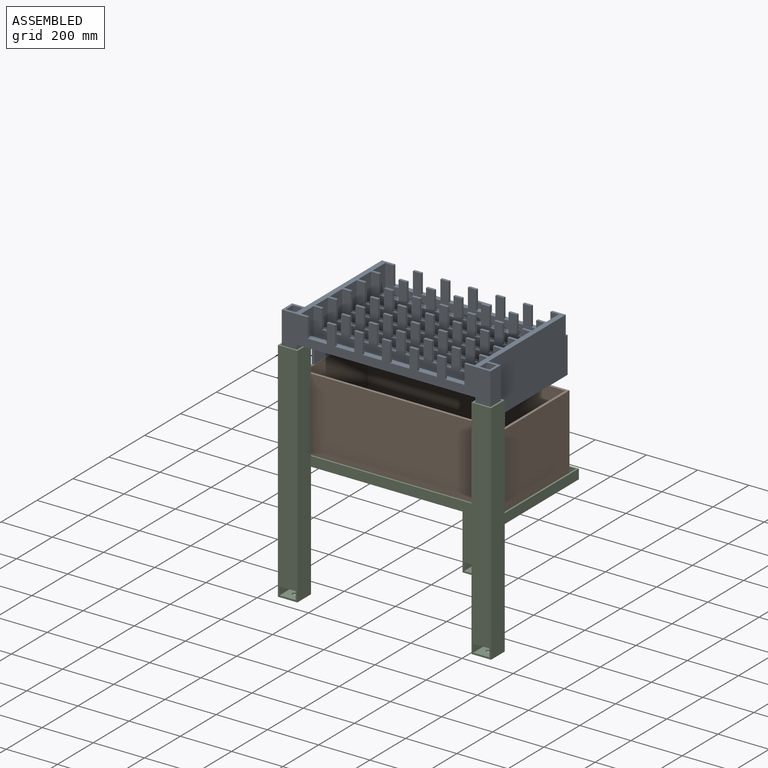
[diagram: assembled view]
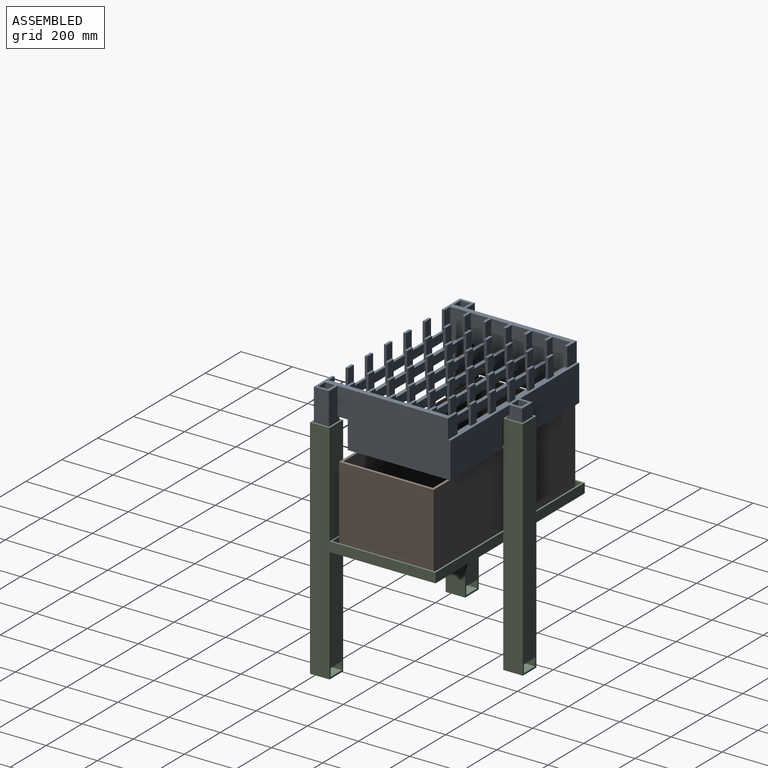
[diagram: assembled view, second angle]
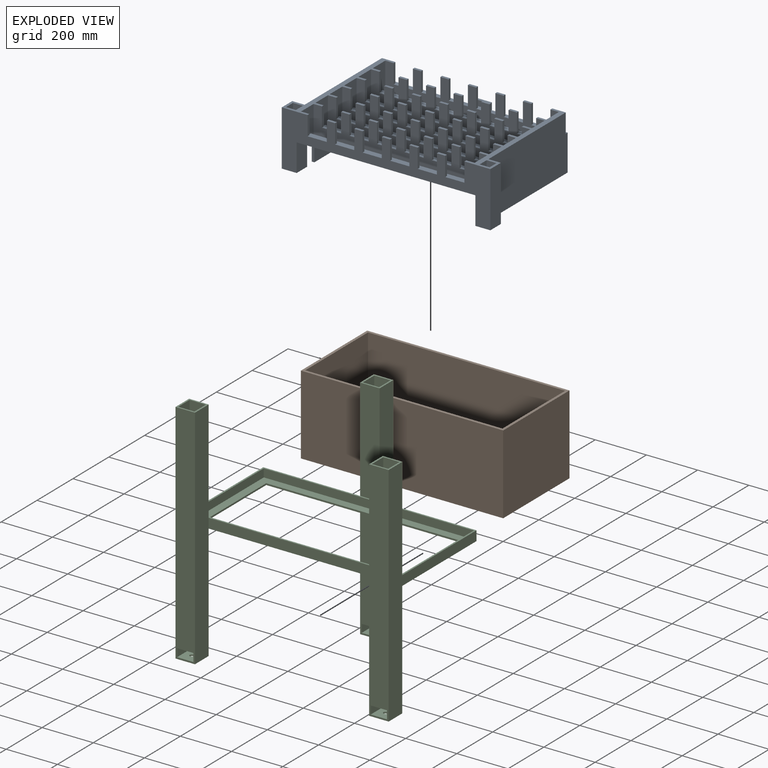
[diagram: exploded view]
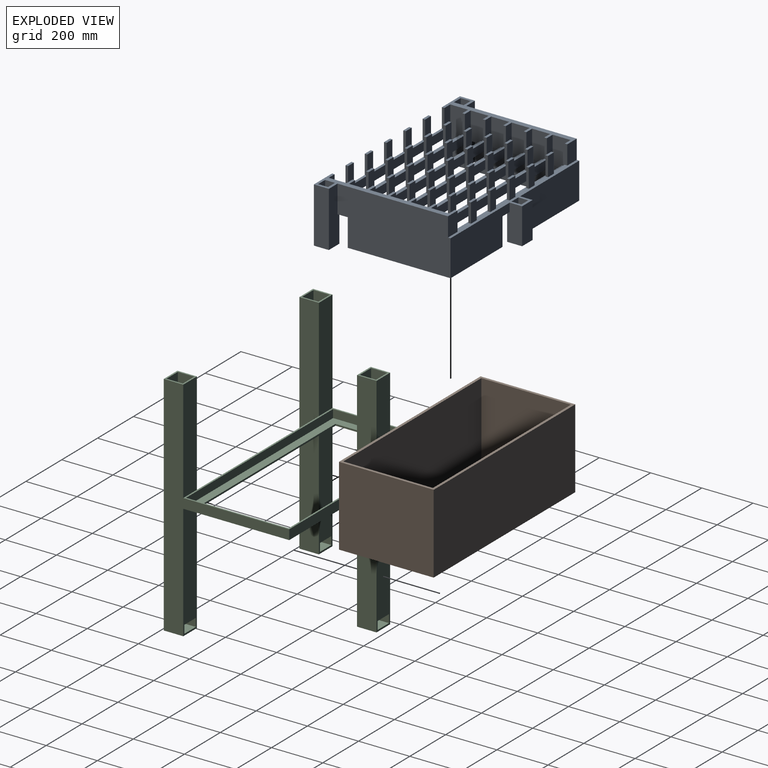
[diagram: exploded view, second angle]
ASSEMBLY  parts=3 mates=2
PART A: 248 faces, bbox 815x548.5x216 mm
  f0: plane 141x38.5mm, normal (-1,0,0), area 5428.5mm2, adj f2,f215,f241,f247
  f1: plane 329.75x141mm, normal (0,1,0), area 42174.7mm2, adj f11,f63,f215,f231,f242,f243
  f2: plane 141x38.5mm, normal (0,1,0), area 5428.5mm2, adj f0,f215,f241,f246
  f3: plane 329.75x141mm, normal (0,1,0), area 42174.7mm2, adj f63,f215,f222,f224,f239,f240
  f4: plane 75x53mm, normal (0,1,0), area 3975mm2, adj f50,f206,f215,f224
  f5: plane 75x32.5mm, normal (0,1,0), area 2437.5mm2, adj f43,f205,f208,f215
  f6: plane 75x32.5mm, normal (0,1,0), area 2437.5mm2, adj f36,f207,f210,f215
  f7: plane 75x32.5mm, normal (0,1,0), area 2437.5mm2, adj f29,f209,f212,f215
  f8: plane 75x32.5mm, normal (0,1,0), area 2437.5mm2, adj f22,f211,f214,f215
  f9: plane 75x32.5mm, normal (0,1,0), area 2437.5mm2, adj f15,f213,f215,f217
  f10: plane 216x38.5mm, normal (0,-1,0), area 8316mm2, adj f12,f96,f230,f236
  f11: plane 441.5x216mm, normal (-1,0,0), area 90294mm2, adj f1,f63,f65,f96,f215,f229,f231,f232
  f12: plane 216x38.5mm, normal (-1,0,0), area 8316mm2, adj f10,f96,f230,f234
  f13: plane 216x38.5mm, normal (0,1,0), area 8316mm2, adj f14,f50,f223,f227
  f14: plane 216x38.5mm, normal (1,0,0), area 8316mm2, adj f13,f50,f223,f226
  f15: plane 32.5x10mm, normal (0,0,1), area 325mm2, adj f9,f67,f213,f217
  f16: plane 32.5x10mm, normal (0,0,1), area 325mm2, adj f68,f71,f201,f202
  f17: plane 32.5x10mm, normal (0,0,1), area 325mm2, adj f72,f75,f183,f184
  f18: plane 32.5x10mm, normal (0,0,1), area 325mm2, adj f76,f79,f165,f166
  f19: plane 32.5x10mm, normal (0,0,1), area 325mm2, adj f80,f83,f147,f148
  f20: plane 32.5x10mm, normal (0,0,1), area 325mm2, adj f84,f87,f129,f130
  f21: plane 32.5x10mm, normal (0,0,1), area 325mm2, adj f64,f88,f111,f112
  f22: plane 32.5x10mm, normal (0,0,1), area 325mm2, adj f8,f67,f211,f214
  f23: plane 32.5x10mm, normal (0,0,1), area 325mm2, adj f68,f71,f198,f199
  f24: plane 32.5x10mm, normal (0,0,1), area 325mm2, adj f72,f75,f180,f181
  f25: plane 32.5x10mm, normal (0,0,1), area 325mm2, adj f76,f79,f162,f163
  f26: plane 32.5x10mm, normal (0,0,1), area 325mm2, adj f80,f83,f144,f145
  f27: plane 32.5x10mm, normal (0,0,1), area 325mm2, adj f84,f87,f126,f127
  f28: plane 32.5x10mm, normal (0,0,1), area 325mm2, adj f64,f88,f108,f109
  f29: plane 32.5x10mm, normal (0,0,1), area 325mm2, adj f7,f67,f209,f212
  f30: plane 32.5x10mm, normal (0,0,1), area 325mm2, adj f68,f71,f195,f196
  f31: plane 32.5x10mm, normal (0,0,1), area 325mm2, adj f72,f75,f177,f178
  f32: plane 32.5x10mm, normal (0,0,1), area 325mm2, adj f76,f79,f159,f160
  f33: plane 32.5x10mm, normal (0,0,1), area 325mm2, adj f80,f83,f141,f142
  f34: plane 32.5x10mm, normal (0,0,1), area 325mm2, adj f84,f87,f123,f124
  f35: plane 32.5x10mm, normal (0,0,1), area 325mm2, adj f64,f88,f105,f106
  f36: plane 32.5x10mm, normal (0,0,1), area 325mm2, adj f6,f67,f207,f210
  f37: plane 32.5x10mm, normal (0,0,1), area 325mm2, adj f68,f71,f192,f193
  f38: plane 32.5x10mm, normal (0,0,1), area 325mm2, adj f72,f75,f174,f175
  f39: plane 32.5x10mm, normal (0,0,1), area 325mm2, adj f76,f79,f156,f157
  f40: plane 32.5x10mm, normal (0,0,1), area 325mm2, adj f80,f83,f138,f139
  f41: plane 32.5x10mm, normal (0,0,1), area 325mm2, adj f84,f87,f120,f121
  f42: plane 32.5x10mm, normal (0,0,1), area 325mm2, adj f64,f88,f102,f103
  f43: plane 32.5x10mm, normal (0,0,1), area 325mm2, adj f5,f67,f205,f208
  f44: plane 32.5x10mm, normal (0,0,1), area 325mm2, adj f68,f71,f189,f190
  f45: plane 32.5x10mm, normal (0,0,1), area 325mm2, adj f72,f75,f171,f172
  f46: plane 32.5x10mm, normal (0,0,1), area 325mm2, adj f76,f79,f153,f154
  f47: plane 32.5x10mm, normal (0,0,1), area 325mm2, adj f80,f83,f135,f136
  f48: plane 32.5x10mm, normal (0,0,1), area 325mm2, adj f84,f87,f117,f118
  f49: plane 32.5x10mm, normal (0,0,1), area 325mm2, adj f64,f88,f99,f100
  f50: plane 490x101.5mm, normal (0,0,1), area 13465mm2, adj f4,f13,f14,f51,f53,f55,f57,f59
  f51: plane 108x70mm, normal (-1,0,0), area 7390mm2, adj f50,f63,f66,f67,f68,f69,f95
  f52: plane 108x70mm, normal (1,0,0), area 7390mm2, adj f63,f66,f67,f68,f69,f95,f96
  f53: plane 108x70mm, normal (-1,0,0), area 7390mm2, adj f50,f63,f70,f71,f72,f73,f94
  f54: plane 108x70mm, normal (1,0,0), area 7390mm2, adj f63,f70,f71,f72,f73,f94,f96
  f55: plane 108x70mm, normal (-1,0,0), area 7390mm2, adj f50,f63,f74,f75,f76,f77,f93
  f56: plane 108x70mm, normal (1,0,0), area 7390mm2, adj f63,f74,f75,f76,f77,f93,f96
  f57: plane 108x70mm, normal (-1,0,0), area 7390mm2, adj f50,f63,f78,f79,f80,f81,f92
  f58: plane 108x70mm, normal (1,0,0), area 7390mm2, adj f63,f78,f79,f80,f81,f92,f96
  f59: plane 108x70mm, normal (-1,0,0), area 7390mm2, adj f50,f63,f82,f83,f84,f85,f91
  f60: plane 108x70mm, normal (1,0,0), area 7390mm2, adj f63,f82,f83,f84,f85,f91,f96
  f61: plane 108x70mm, normal (-1,0,0), area 7390mm2, adj f50,f63,f86,f87,f88,f89,f90
  f62: plane 108x70mm, normal (1,0,0), area 7390mm2, adj f63,f86,f87,f88,f89,f90,f96
  f63: plane 718x500mm, normal (0,0,-1), area 128016mm2, adj f1,f3,f11,f51,f52,f53,f54,f55
  f64: plane 815x216mm, normal (0,-1,0), area 66906mm2, adj f21,f28,f35,f42,f49,f50,f63,f96
  f65: plane 75x52.5mm, normal (0,1,0), area 3937.5mm2, adj f11,f96,f215,f216
  f66: plane 678x10mm, normal (0,1,0), area 6780mm2, adj f51,f52,f63,f95
  f67: plane 678x108mm, normal (0,-1,0), area 39474mm2, adj f15,f22,f29,f36,f43,f50,f51,f52
  f68: plane 678x108mm, normal (0,1,0), area 39474mm2, adj f16,f23,f30,f37,f44,f50,f51,f52
  f69: plane 678x10mm, normal (0,-1,0), area 6780mm2, adj f51,f52,f63,f95
  f70: plane 678x10mm, normal (0,1,0), area 6780mm2, adj f53,f54,f63,f94
  f71: plane 678x108mm, normal (0,-1,0), area 39474mm2, adj f16,f23,f30,f37,f44,f50,f53,f54
  f72: plane 678x108mm, normal (0,1,0), area 39474mm2, adj f17,f24,f31,f38,f45,f50,f53,f54
  f73: plane 678x10mm, normal (0,-1,0), area 6780mm2, adj f53,f54,f63,f94
  f74: plane 678x10mm, normal (0,1,0), area 6780mm2, adj f55,f56,f63,f93
  f75: plane 678x108mm, normal (0,-1,0), area 39474mm2, adj f17,f24,f31,f38,f45,f50,f55,f56
  f76: plane 678x108mm, normal (0,1,0), area 39474mm2, adj f18,f25,f32,f39,f46,f50,f55,f56
  f77: plane 678x10mm, normal (0,-1,0), area 6780mm2, adj f55,f56,f63,f93
  f78: plane 678x10mm, normal (0,1,0), area 6780mm2, adj f57,f58,f63,f92
  f79: plane 678x108mm, normal (0,-1,0), area 39474mm2, adj f18,f25,f32,f39,f46,f50,f57,f58
  f80: plane 678x108mm, normal (0,1,0), area 39474mm2, adj f19,f26,f33,f40,f47,f50,f57,f58
  f81: plane 678x10mm, normal (0,-1,0), area 6780mm2, adj f57,f58,f63,f92
  f82: plane 678x10mm, normal (0,1,0), area 6780mm2, adj f59,f60,f63,f91
  f83: plane 678x108mm, normal (0,-1,0), area 39474mm2, adj f19,f26,f33,f40,f47,f50,f59,f60
  f84: plane 678x108mm, normal (0,1,0), area 39474mm2, adj f20,f27,f34,f41,f48,f50,f59,f60
  f85: plane 678x10mm, normal (0,-1,0), area 6780mm2, adj f59,f60,f63,f91
  f86: plane 678x10mm, normal (0,1,0), area 6780mm2, adj f61,f62,f63,f90
  f87: plane 678x108mm, normal (0,-1,0), area 39474mm2, adj f20,f27,f34,f41,f48,f50,f61,f62
  f88: plane 678x108mm, normal (0,1,0), area 39474mm2, adj f21,f28,f35,f42,f49,f50,f61,f62
  f89: plane 678x10mm, normal (0,-1,0), area 6780mm2, adj f61,f62,f63,f90
  f90: plane 678x17mm, normal (0,0,1), area 11526mm2, adj f61,f62,f86,f89
  f91: plane 678x17mm, normal (0,0,1), area 11526mm2, adj f59,f60,f82,f85
  f92: plane 678x17mm, normal (0,0,1), area 11526mm2, adj f57,f58,f78,f81
  f93: plane 678x17mm, normal (0,0,1), area 11526mm2, adj f55,f56,f74,f77
  f94: plane 678x17mm, normal (0,0,1), area 11526mm2, adj f53,f54,f70,f73
  f95: plane 678x17mm, normal (0,0,1), area 11526mm2, adj f51,f52,f66,f69
  f96: plane 490x101mm, normal (0,0,1), area 13430mm2, adj f10,f11,f12,f52,f54,f56,f58,f60
  f97: plane 75x10mm, normal (-1,0,0), area 750mm2, adj f50,f64,f88,f98
  f98: plane 75x10mm, normal (0,0,1), area 750mm2, adj f64,f88,f97,f99
  f99: plane 75x10mm, normal (1,0,0), area 750mm2, adj f49,f64,f88,f98
  f100: plane 75x10mm, normal (-1,0,0), area 750mm2, adj f49,f64,f88,f101
  f101: plane 75x10mm, normal (0,0,1), area 750mm2, adj f64,f88,f100,f102
  f102: plane 75x10mm, normal (1,0,0), area 750mm2, adj f42,f64,f88,f101
  f103: plane 75x10mm, normal (-1,0,0), area 750mm2, adj f42,f64,f88,f104
  f104: plane 75x10mm, normal (0,0,1), area 750mm2, adj f64,f88,f103,f105
  f105: plane 75x10mm, normal (1,0,0), area 750mm2, adj f35,f64,f88,f104
  f106: plane 75x10mm, normal (-1,0,0), area 750mm2, adj f35,f64,f88,f107
  f107: plane 75x10mm, normal (0,0,1), area 750mm2, adj f64,f88,f106,f108
  f108: plane 75x10mm, normal (1,0,0), area 750mm2, adj f28,f64,f88,f107
  f109: plane 75x10mm, normal (-1,0,0), area 750mm2, adj f28,f64,f88,f110
  f110: plane 75x10mm, normal (0,0,1), area 750mm2, adj f64,f88,f109,f111
  f111: plane 75x10mm, normal (1,0,0), area 750mm2, adj f21,f64,f88,f110
  f112: plane 75x10mm, normal (-1,0,0), area 750mm2, adj f21,f64,f88,f113
  f113: plane 75x10mm, normal (0,0,1), area 750mm2, adj f64,f88,f112,f114
  f114: plane 75x10mm, normal (1,0,0), area 750mm2, adj f64,f88,f96,f113
  f115: plane 75x10mm, normal (-1,0,0), area 750mm2, adj f50,f84,f87,f116
  f116: plane 75x10mm, normal (0,0,1), area 750mm2, adj f84,f87,f115,f117
  f117: plane 75x10mm, normal (1,0,0), area 750mm2, adj f48,f84,f87,f116
  f118: plane 75x10mm, normal (-1,0,0), area 750mm2, adj f48,f84,f87,f119
  f119: plane 75x10mm, normal (0,0,1), area 750mm2, adj f84,f87,f118,f120
  f120: plane 75x10mm, normal (1,0,0), area 750mm2, adj f41,f84,f87,f119
  f121: plane 75x10mm, normal (-1,0,0), area 750mm2, adj f41,f84,f87,f122
  f122: plane 75x10mm, normal (0,0,1), area 750mm2, adj f84,f87,f121,f123
  f123: plane 75x10mm, normal (1,0,0), area 750mm2, adj f34,f84,f87,f122
  f124: plane 75x10mm, normal (-1,0,0), area 750mm2, adj f34,f84,f87,f125
  f125: plane 75x10mm, normal (0,0,1), area 750mm2, adj f84,f87,f124,f126
  f126: plane 75x10mm, normal (1,0,0), area 750mm2, adj f27,f84,f87,f125
  f127: plane 75x10mm, normal (-1,0,0), area 750mm2, adj f27,f84,f87,f128
  f128: plane 75x10mm, normal (0,0,1), area 750mm2, adj f84,f87,f127,f129
  f129: plane 75x10mm, normal (1,0,0), area 750mm2, adj f20,f84,f87,f128
  f130: plane 75x10mm, normal (-1,0,0), area 750mm2, adj f20,f84,f87,f131
  f131: plane 75x10mm, normal (0,0,1), area 750mm2, adj f84,f87,f130,f132
  f132: plane 75x10mm, normal (1,0,0), area 750mm2, adj f84,f87,f96,f131
  f133: plane 75x10mm, normal (-1,0,0), area 750mm2, adj f50,f80,f83,f134
  f134: plane 75x10mm, normal (0,0,1), area 750mm2, adj f80,f83,f133,f135
  f135: plane 75x10mm, normal (1,0,0), area 750mm2, adj f47,f80,f83,f134
  f136: plane 75x10mm, normal (-1,0,0), area 750mm2, adj f47,f80,f83,f137
  f137: plane 75x10mm, normal (0,0,1), area 750mm2, adj f80,f83,f136,f138
  f138: plane 75x10mm, normal (1,0,0), area 750mm2, adj f40,f80,f83,f137
  f139: plane 75x10mm, normal (-1,0,0), area 750mm2, adj f40,f80,f83,f140
  f140: plane 75x10mm, normal (0,0,1), area 750mm2, adj f80,f83,f139,f141
  f141: plane 75x10mm, normal (1,0,0), area 750mm2, adj f33,f80,f83,f140
  f142: plane 75x10mm, normal (-1,0,0), area 750mm2, adj f33,f80,f83,f143
  f143: plane 75x10mm, normal (0,0,1), area 750mm2, adj f80,f83,f142,f144
  f144: plane 75x10mm, normal (1,0,0), area 750mm2, adj f26,f80,f83,f143
  f145: plane 75x10mm, normal (-1,0,0), area 750mm2, adj f26,f80,f83,f146
  f146: plane 75x10mm, normal (0,0,1), area 750mm2, adj f80,f83,f145,f147
  f147: plane 75x10mm, normal (1,0,0), area 750mm2, adj f19,f80,f83,f146
  f148: plane 75x10mm, normal (-1,0,0), area 750mm2, adj f19,f80,f83,f149
  f149: plane 75x10mm, normal (0,0,1), area 750mm2, adj f80,f83,f148,f150
  f150: plane 75x10mm, normal (1,0,0), area 750mm2, adj f80,f83,f96,f149
  f151: plane 75x10mm, normal (-1,0,0), area 750mm2, adj f50,f76,f79,f152
  f152: plane 75x10mm, normal (0,0,1), area 750mm2, adj f76,f79,f151,f153
  f153: plane 75x10mm, normal (1,0,0), area 750mm2, adj f46,f76,f79,f152
  f154: plane 75x10mm, normal (-1,0,0), area 750mm2, adj f46,f76,f79,f155
  f155: plane 75x10mm, normal (0,0,1), area 750mm2, adj f76,f79,f154,f156
  f156: plane 75x10mm, normal (1,0,0), area 750mm2, adj f39,f76,f79,f155
  f157: plane 75x10mm, normal (-1,0,0), area 750mm2, adj f39,f76,f79,f158
  f158: plane 75x10mm, normal (0,0,1), area 750mm2, adj f76,f79,f157,f159
  f159: plane 75x10mm, normal (1,0,0), area 750mm2, adj f32,f76,f79,f158
  f160: plane 75x10mm, normal (-1,0,0), area 750mm2, adj f32,f76,f79,f161
  f161: plane 75x10mm, normal (0,0,1), area 750mm2, adj f76,f79,f160,f162
  f162: plane 75x10mm, normal (1,0,0), area 750mm2, adj f25,f76,f79,f161
  f163: plane 75x10mm, normal (-1,0,0), area 750mm2, adj f25,f76,f79,f164
  f164: plane 75x10mm, normal (0,0,1), area 750mm2, adj f76,f79,f163,f165
  f165: plane 75x10mm, normal (1,0,0), area 750mm2, adj f18,f76,f79,f164
  f166: plane 75x10mm, normal (-1,0,0), area 750mm2, adj f18,f76,f79,f167
  f167: plane 75x10mm, normal (0,0,1), area 750mm2, adj f76,f79,f166,f168
  f168: plane 75x10mm, normal (1,0,0), area 750mm2, adj f76,f79,f96,f167
  f169: plane 75x10mm, normal (-1,0,0), area 750mm2, adj f50,f72,f75,f170
  f170: plane 75x10mm, normal (0,0,1), area 750mm2, adj f72,f75,f169,f171
  f171: plane 75x10mm, normal (1,0,0), area 750mm2, adj f45,f72,f75,f170
  f172: plane 75x10mm, normal (-1,0,0), area 750mm2, adj f45,f72,f75,f173
  f173: plane 75x10mm, normal (0,0,1), area 750mm2, adj f72,f75,f172,f174
  f174: plane 75x10mm, normal (1,0,0), area 750mm2, adj f38,f72,f75,f173
  f175: plane 75x10mm, normal (-1,0,0), area 750mm2, adj f38,f72,f75,f176
  f176: plane 75x10mm, normal (0,0,1), area 750mm2, adj f72,f75,f175,f177
  f177: plane 75x10mm, normal (1,0,0), area 750mm2, adj f31,f72,f75,f176
  f178: plane 75x10mm, normal (-1,0,0), area 750mm2, adj f31,f72,f75,f179
  f179: plane 75x10mm, normal (0,0,1), area 750mm2, adj f72,f75,f178,f180
  f180: plane 75x10mm, normal (1,0,0), area 750mm2, adj f24,f72,f75,f179
  f181: plane 75x10mm, normal (-1,0,0), area 750mm2, adj f24,f72,f75,f182
  f182: plane 75x10mm, normal (0,0,1), area 750mm2, adj f72,f75,f181,f183
  f183: plane 75x10mm, normal (1,0,0), area 750mm2, adj f17,f72,f75,f182
  f184: plane 75x10mm, normal (-1,0,0), area 750mm2, adj f17,f72,f75,f185
  f185: plane 75x10mm, normal (0,0,1), area 750mm2, adj f72,f75,f184,f186
  f186: plane 75x10mm, normal (1,0,0), area 750mm2, adj f72,f75,f96,f185
  f187: plane 75x10mm, normal (-1,0,0), area 750mm2, adj f50,f68,f71,f188
  f188: plane 75x10mm, normal (0,0,1), area 750mm2, adj f68,f71,f187,f189
  f189: plane 75x10mm, normal (1,0,0), area 750mm2, adj f44,f68,f71,f188
  f190: plane 75x10mm, normal (-1,0,0), area 750mm2, adj f44,f68,f71,f191
  f191: plane 75x10mm, normal (0,0,1), area 750mm2, adj f68,f71,f190,f192
  f192: plane 75x10mm, normal (1,0,0), area 750mm2, adj f37,f68,f71,f191
  f193: plane 75x10mm, normal (-1,0,0), area 750mm2, adj f37,f68,f71,f194
  f194: plane 75x10mm, normal (0,0,1), area 750mm2, adj f68,f71,f193,f195
  f195: plane 75x10mm, normal (1,0,0), area 750mm2, adj f30,f68,f71,f194
  f196: plane 75x10mm, normal (-1,0,0), area 750mm2, adj f30,f68,f71,f197
  f197: plane 75x10mm, normal (0,0,1), area 750mm2, adj f68,f71,f196,f198
  f198: plane 75x10mm, normal (1,0,0), area 750mm2, adj f23,f68,f71,f197
  f199: plane 75x10mm, normal (-1,0,0), area 750mm2, adj f23,f68,f71,f200
  f200: plane 75x10mm, normal (0,0,1), area 750mm2, adj f68,f71,f199,f201
  f201: plane 75x10mm, normal (1,0,0), area 750mm2, adj f16,f68,f71,f200
  f202: plane 75x10mm, normal (-1,0,0), area 750mm2, adj f16,f68,f71,f203
  f203: plane 75x10mm, normal (0,0,1), area 750mm2, adj f68,f71,f202,f204
  f204: plane 75x10mm, normal (1,0,0), area 750mm2, adj f68,f71,f96,f203
  f205: plane 75x10mm, normal (1,0,0), area 750mm2, adj f5,f43,f67,f215
  f206: plane 75x10mm, normal (-1,0,0), area 750mm2, adj f4,f50,f67,f215
  f207: plane 75x10mm, normal (1,0,0), area 750mm2, adj f6,f36,f67,f215
  f208: plane 75x10mm, normal (-1,0,0), area 750mm2, adj f5,f43,f67,f215
  f209: plane 75x10mm, normal (1,0,0), area 750mm2, adj f7,f29,f67,f215
  f210: plane 75x10mm, normal (-1,0,0), area 750mm2, adj f6,f36,f67,f215
  f211: plane 75x10mm, normal (1,0,0), area 750mm2, adj f8,f22,f67,f215
  f212: plane 75x10mm, normal (-1,0,0), area 750mm2, adj f7,f29,f67,f215
  f213: plane 75x10mm, normal (1,0,0), area 750mm2, adj f9,f15,f67,f215
  f214: plane 75x10mm, normal (-1,0,0), area 750mm2, adj f8,f22,f67,f215
  f215: plane 718x68.5mm, normal (0,0,1), area 13035mm2, adj f0,f1,f2,f3,f4,f5,f6,f7
  f216: plane 75x10mm, normal (1,0,0), area 750mm2, adj f65,f67,f96,f215
  f217: plane 75x10mm, normal (-1,0,0), area 750mm2, adj f9,f15,f67,f215
  f218: plane 108x58.5mm, normal (-1,0,0), area 6318mm2, adj f63,f64,f220,f223
  f219: plane 391.5x108mm, normal (-1,0,0), area 42282mm2, adj f63,f221,f222,f244
  f220: plane 216x58.5mm, normal (0,1,0), area 11556mm2, adj f50,f63,f218,f223,f224,f225
  f221: plane 108x10mm, normal (0,-1,0), area 1080mm2, adj f63,f219,f222,f224
  f222: plane 401.5x289.75mm, normal (0,0,-1), area 6812.5mm2, adj f3,f219,f221,f224,f239,f244
  f223: plane 58.5x58.5mm, normal (0,0,-1), area 1940mm2, adj f13,f14,f64,f218,f220,f225,f226,f227
  f224: plane 441.5x216mm, normal (1,0,0), area 90294mm2, adj f3,f4,f50,f63,f215,f220,f221,f222
  f225: plane 216x58.5mm, normal (1,0,0), area 12636mm2, adj f50,f64,f220,f223
  f226: plane 216x38.5mm, normal (0,-1,0), area 8316mm2, adj f14,f50,f223,f227
  f227: plane 216x38.5mm, normal (-1,0,0), area 8316mm2, adj f13,f50,f223,f226
  f228: plane 108x58.5mm, normal (1,0,0), area 6318mm2, adj f63,f64,f229,f230
  f229: plane 216x58.5mm, normal (0,1,0), area 11556mm2, adj f11,f63,f96,f228,f230,f235
  f230: plane 58.5x58.5mm, normal (0,0,-1), area 1940mm2, adj f10,f12,f64,f228,f229,f234,f235,f236
  f231: plane 401.5x289.75mm, normal (0,0,-1), area 6812.5mm2, adj f1,f11,f232,f233,f238,f243
  f232: plane 108x10mm, normal (0,-1,0), area 1080mm2, adj f11,f63,f231,f233
  f233: plane 391.5x108mm, normal (1,0,0), area 42282mm2, adj f63,f231,f232,f238
  f234: plane 216x38.5mm, normal (0,1,0), area 8316mm2, adj f12,f96,f230,f236
  f235: plane 216x58.5mm, normal (-1,0,0), area 12636mm2, adj f64,f96,f229,f230
  f236: plane 216x38.5mm, normal (1,0,0), area 8316mm2, adj f10,f96,f230,f234
  f237: plane 108x58.5mm, normal (0,-1,0), area 6318mm2, adj f63,f240,f241,f242
  f238: plane 279.75x108mm, normal (0,-1,0), area 30213mm2, adj f63,f231,f233,f243
  f239: plane 108x10mm, normal (-1,0,0), area 1080mm2, adj f3,f63,f222,f244
  f240: plane 141x58.5mm, normal (1,0,0), area 7918.5mm2, adj f3,f63,f215,f237,f241,f245
  f241: plane 58.5x58.5mm, normal (0,0,-1), area 1940mm2, adj f0,f2,f237,f240,f242,f245,f246,f247
  f242: plane 141x58.5mm, normal (-1,0,0), area 7918.5mm2, adj f1,f63,f215,f237,f241,f245
  f243: plane 108x10mm, normal (1,0,0), area 1080mm2, adj f1,f63,f231,f238
  f244: plane 279.75x108mm, normal (0,-1,0), area 30213mm2, adj f63,f219,f222,f239
  f245: plane 141x58.5mm, normal (0,1,0), area 8248.5mm2, adj f215,f240,f241,f242
  f246: plane 141x38.5mm, normal (1,0,0), area 5428.5mm2, adj f2,f215,f241,f247
  f247: plane 141x38.5mm, normal (0,-1,0), area 5428.5mm2, adj f0,f215,f241,f246
PART B: 12 faces, bbox 790x370x310 mm
  f0: plane 790x310mm, normal (0,1,0), area 244900mm2, adj f1,f3,f4,f9
  f1: plane 370x310mm, normal (-1,0,0), area 114700mm2, adj f0,f2,f4,f9
  f2: plane 790x310mm, normal (0,-1,0), area 244900mm2, adj f1,f3,f4,f9
  f3: plane 370x310mm, normal (1,0,0), area 114700mm2, adj f0,f2,f4,f9
  f4: plane 790x370mm, normal (0,0,-1), area 291043.4mm2, adj f0,f1,f2,f3,f11
  f5: plane 350x300mm, normal (-1,0,0), area 105000mm2, adj f6,f8,f9,f10
  f6: plane 770x300mm, normal (0,1,0), area 231000mm2, adj f5,f7,f9,f10
  f7: plane 350x300mm, normal (1,0,0), area 105000mm2, adj f6,f8,f9,f10
  f8: plane 770x300mm, normal (0,-1,0), area 231000mm2, adj f5,f7,f9,f10
  f9: plane 790x370mm, normal (0,0,1), area 22800mm2, adj f0,f1,f2,f3,f5,f6,f7,f8
  f10: plane 770x350mm, normal (0,0,1), area 268243.4mm2, adj f5,f6,f7,f8,f11
  f11: cylinder r=20mm len=40mm, axis (0,0,1), area 1256.6mm2, adj f4,f10
PART C: 59 faces, bbox 832.7x566.2x888.1 mm
  f0: plane 63.5x6.35mm, normal (0,0,-1), area 403.2mm2, adj f39,f40,f42,f43
  f1: plane 63.5x6.35mm, normal (0,0,-1), area 403.2mm2, adj f37,f40,f41,f42
  f2: plane 63.5x6.35mm, normal (0,0,-1), area 403.2mm2, adj f14,f18,f20,f21
  f3: plane 63.5x6.35mm, normal (0,0,-1), area 403.2mm2, adj f15,f18,f19,f20
  f4: plane 63.5x6.35mm, normal (0,0,-1), area 403.2mm2, adj f24,f28,f30,f31
  f5: plane 63.5x6.35mm, normal (0,0,-1), area 403.2mm2, adj f25,f28,f29,f30
  f6: plane 832.7x413.79mm, normal (0,0,-1), area 89175.9mm2, adj f8,f11,f12,f14,f22,f24,f26,f34
  f7: plane 832.7x413.79mm, normal (0,0,1), area 15669.1mm2, adj f8,f9,f11,f13,f17,f22,f26,f27
  f8: plane 378.25x38.1mm, normal (0,1,0), area 14411.3mm2, adj f6,f7,f22,f44
  f9: plane 820x31.75mm, normal (0,-1,0), area 26035mm2, adj f7,f10,f47,f48
  f10: plane 820x401.09mm, normal (0,0,1), area 73506.8mm2, adj f9,f12,f13,f35,f46,f47,f48,f49
  f11: plane 378.25x38.1mm, normal (0,1,0), area 14411.3mm2, adj f6,f7,f26,f38
  f12: plane 756.5x6.35mm, normal (0,1,0), area 4803.8mm2, adj f6,f10,f46,f49
  f13: plane 820x31.75mm, normal (0,1,0), area 26035mm2, adj f7,f10,f47,f48
  f14: plane 450x76.2mm, normal (0,1,0), area 32273.9mm2, adj f2,f6,f16,f18,f20,f22,f52,f53
  f15: plane 888.1x76.2mm, normal (0,-1,0), area 65657.1mm2, adj f3,f16,f18,f20,f22,f23,f52,f53
  f16: plane 888.1x76.2mm, normal (1,0,0), area 67673.2mm2, adj f14,f15,f17,f23,f34,f53
  f17: plane 400x76.2mm, normal (0,1,0), area 30480mm2, adj f7,f16,f22,f23
  f18: plane 881.75x76.2mm, normal (-1,0,0), area 56394.3mm2, adj f2,f3,f14,f15,f19,f21,f23,f52
  f19: plane 850x63.5mm, normal (0,1,0), area 53975mm2, adj f3,f18,f20,f23
  f20: plane 881.75x76.2mm, normal (1,0,0), area 56394.3mm2, adj f2,f3,f14,f15,f19,f21,f23,f52
  f21: plane 850x63.5mm, normal (0,-1,0), area 53975mm2, adj f2,f18,f20,f23
  f22: plane 888.1x489.99mm, normal (-1,0,0), area 83438.5mm2, adj f6,f7,f8,f14,f15,f17,f23,f53
  f23: plane 76.2x76.2mm, normal (0,0,1), area 1774.2mm2, adj f15,f16,f17,f18,f19,f20,f21,f22
  f24: plane 450x76.2mm, normal (0,1,0), area 32273.9mm2, adj f4,f6,f26,f28,f30,f32,f50,f51
  f25: plane 888.1x76.2mm, normal (0,-1,0), area 65657.1mm2, adj f5,f26,f28,f30,f32,f33,f50,f51
  f26: plane 888.1x489.99mm, normal (1,0,0), area 83438.5mm2, adj f6,f7,f11,f24,f25,f27,f33,f51
  f27: plane 400x76.2mm, normal (0,1,0), area 30480mm2, adj f7,f26,f32,f33
  f28: plane 881.75x76.2mm, normal (-1,0,0), area 56394.4mm2, adj f4,f5,f24,f25,f29,f31,f33,f50
  f29: plane 850x63.5mm, normal (0,1,0), area 53975mm2, adj f5,f28,f30,f33
  f30: plane 881.75x76.2mm, normal (1,0,0), area 56394.4mm2, adj f4,f5,f24,f25,f29,f31,f33,f50
  f31: plane 850x63.5mm, normal (0,-1,0), area 53975mm2, adj f4,f28,f30,f33
  f32: plane 888.1x76.2mm, normal (-1,0,0), area 67673.2mm2, adj f24,f25,f27,f33,f34,f51
  f33: plane 76.2x76.2mm, normal (0,0,1), area 1774.2mm2, adj f25,f26,f27,f28,f29,f30,f31,f32
  f34: plane 680.3x38.1mm, normal (0,-1,0), area 25919.4mm2, adj f6,f7,f16,f32
  f35: plane 756.5x6.35mm, normal (0,-1,0), area 4803.8mm2, adj f6,f10,f46,f49
  f36: plane 400x76.2mm, normal (0,-1,0), area 30480mm2, adj f7,f38,f44,f45
  f37: plane 450x76.2mm, normal (0,-1,0), area 32273.9mm2, adj f1,f6,f38,f40,f42,f44,f54,f55
  f38: plane 888.1x76.2mm, normal (1,0,0), area 67673.2mm2, adj f11,f36,f37,f39,f45,f55
  f39: plane 888.1x76.2mm, normal (0,1,0), area 65657.1mm2, adj f0,f38,f40,f42,f44,f45,f54,f55
  f40: plane 881.75x76.2mm, normal (-1,0,0), area 56394.4mm2, adj f0,f1,f37,f39,f41,f43,f45,f54
  f41: plane 850x63.5mm, normal (0,1,0), area 53975mm2, adj f1,f40,f42,f45
  f42: plane 881.75x76.2mm, normal (1,0,0), area 56394.4mm2, adj f0,f1,f37,f39,f41,f43,f45,f54
  f43: plane 850x63.5mm, normal (0,-1,0), area 53975mm2, adj f0,f40,f42,f45
  f44: plane 888.1x76.2mm, normal (-1,0,0), area 67673.2mm2, adj f8,f36,f37,f39,f45,f55
  f45: plane 76.2x76.2mm, normal (0,0,1), area 1774.2mm2, adj f36,f38,f39,f40,f41,f42,f43,f44
  f46: plane 337.59x6.35mm, normal (-1,0,0), area 2143.7mm2, adj f6,f10,f12,f35
  f47: plane 401.09x31.75mm, normal (-1,0,0), area 12734.5mm2, adj f7,f9,f10,f13
  f48: plane 401.09x31.75mm, normal (1,0,0), area 12734.5mm2, adj f7,f9,f10,f13
  f49: plane 337.59x6.35mm, normal (1,0,0), area 2143.7mm2, adj f6,f10,f12,f35
  f50: plane 76.2x63.5mm, normal (0,0,1), area 4611.7mm2, adj f24,f25,f28,f30,f58
  f51: plane 76.2x76.2mm, normal (0,0,-1), area 5579.5mm2, adj f24,f25,f26,f32,f58
  f52: plane 76.2x63.5mm, normal (0,0,1), area 4611.7mm2, adj f14,f15,f18,f20,f57
  f53: plane 76.2x76.2mm, normal (0,0,-1), area 5579.5mm2, adj f14,f15,f16,f22,f57
  f54: plane 76.2x63.5mm, normal (0,0,1), area 4611.7mm2, adj f37,f39,f40,f42,f56
  f55: plane 76.2x76.2mm, normal (0,0,-1), area 5579.5mm2, adj f37,f38,f39,f44,f56
  f56: cylinder r=8.5mm len=17mm, axis (0,0,-1), area 339.1mm2, adj f54,f55
  f57: cylinder r=8.5mm len=17mm, axis (0,0,-1), area 339.1mm2, adj f52,f53
  f58: cylinder r=8.5mm len=17mm, axis (0,0,-1), area 339.1mm2, adj f50,f51
PLACE A t=(492.52,60.42,168.33)mm
PLACE B t=(97.52,274.66,-279.74)mm
PLACE C t=(114.27,-155.33,152.01)mm fixed
MATE fastened B.f4 <-> C.f10  axis (0,0,-1) through (887.52,89.66,-279.74)mm
MATE slider A.f223 <-> C.f58  axis (0,0,-1) through (870.77,-155.33,60.33)mm
